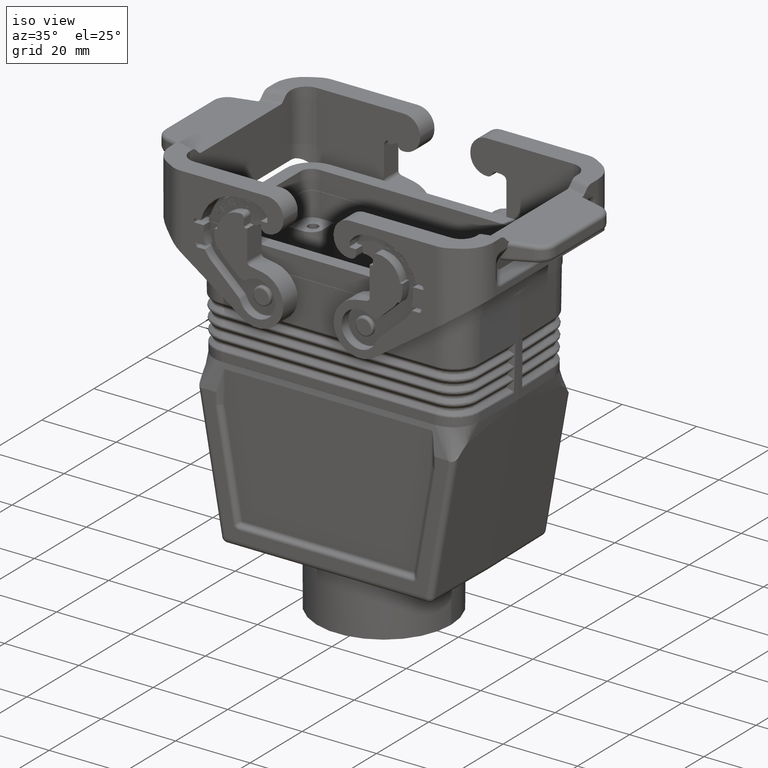
[diagram: clean part render]
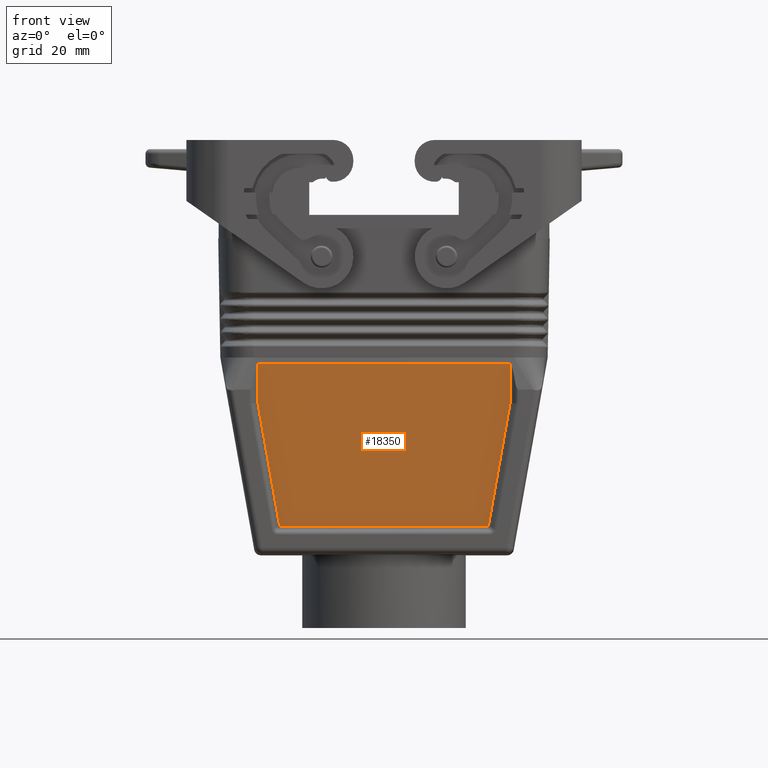
[diagram: tour spotlight — one face highlighted and labeled with its STEP entity id]
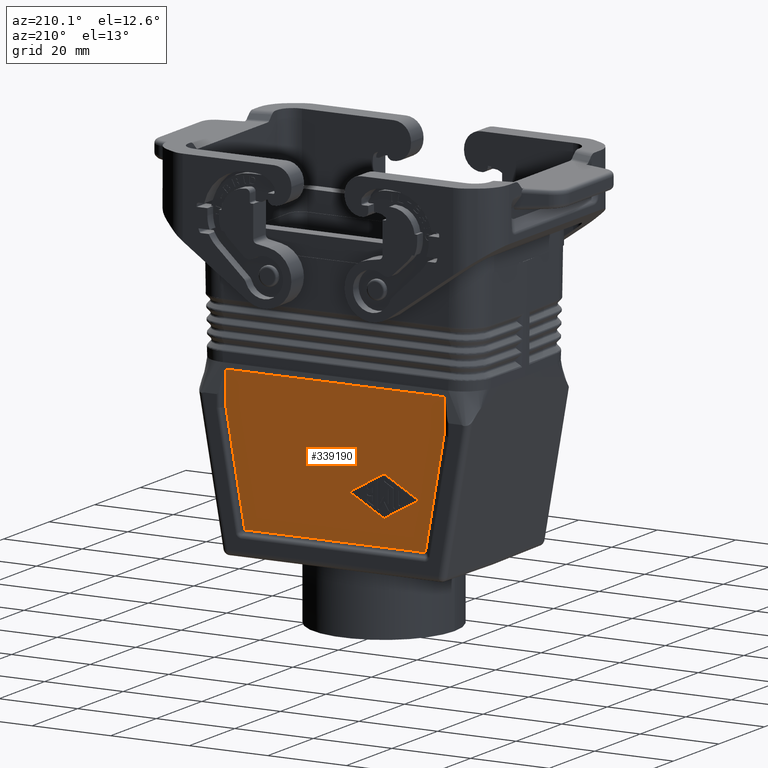
[diagram: tour spotlight — one face highlighted and labeled with its STEP entity id]
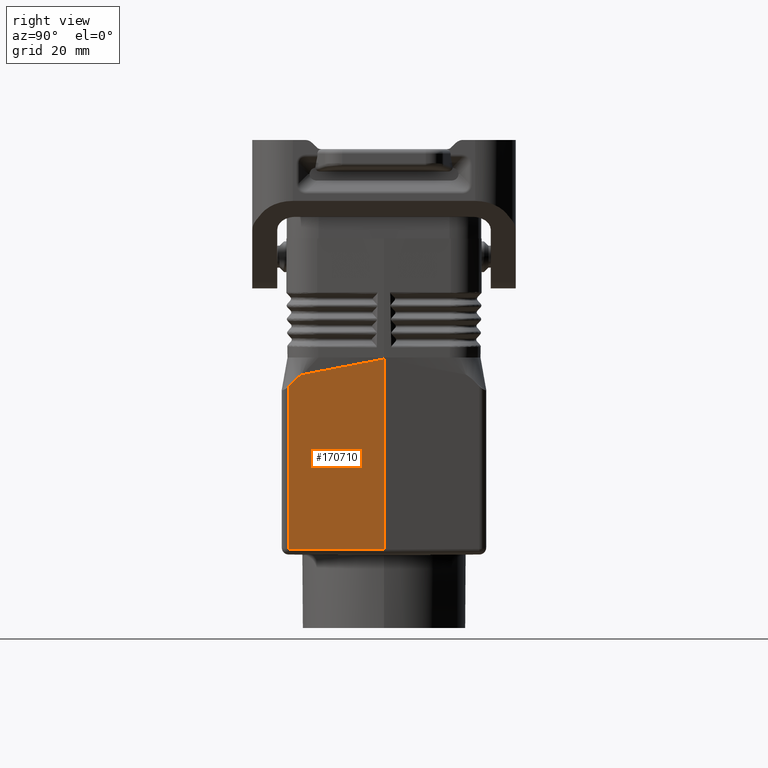
[diagram: tour spotlight — one face highlighted and labeled with its STEP entity id]
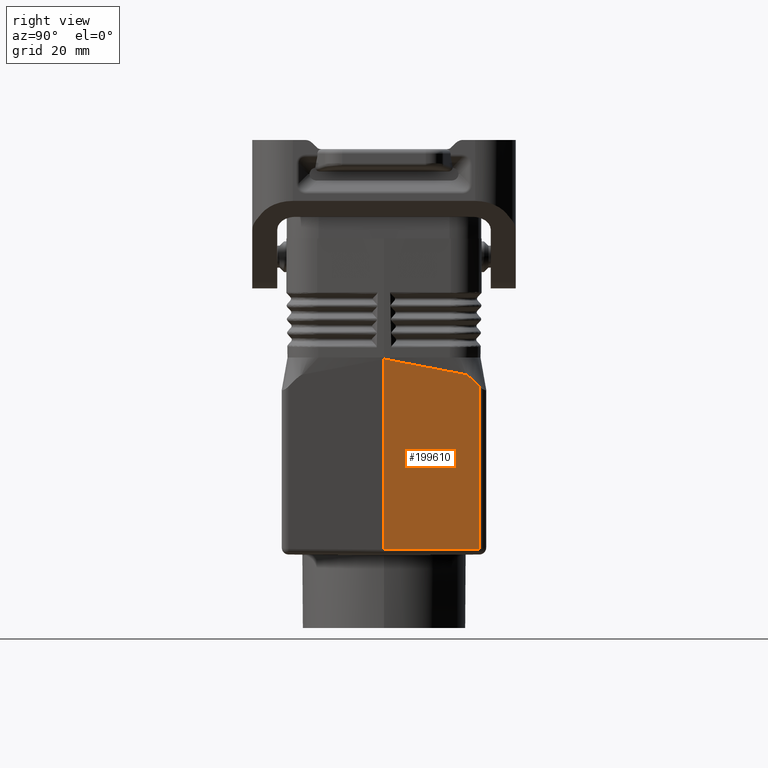
[diagram: tour spotlight — one face highlighted and labeled with its STEP entity id]
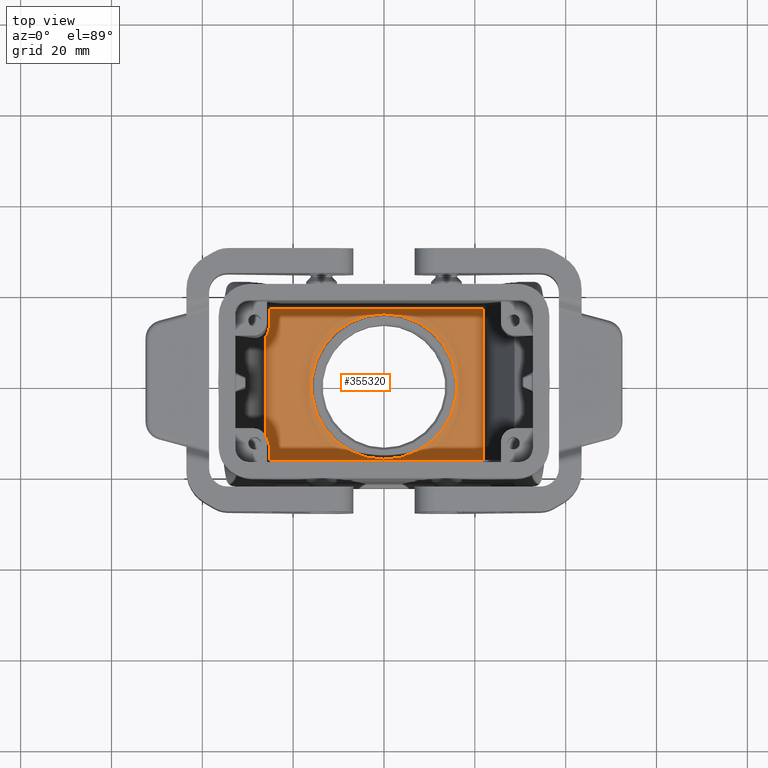
[diagram: tour spotlight — one face highlighted and labeled with its STEP entity id]
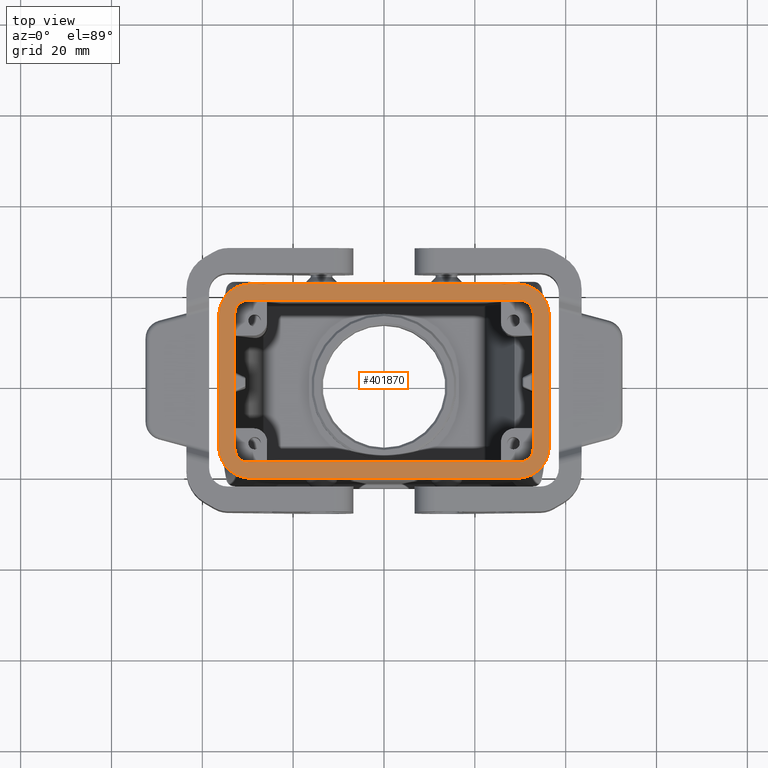
[diagram: tour spotlight — one face highlighted and labeled with its STEP entity id]
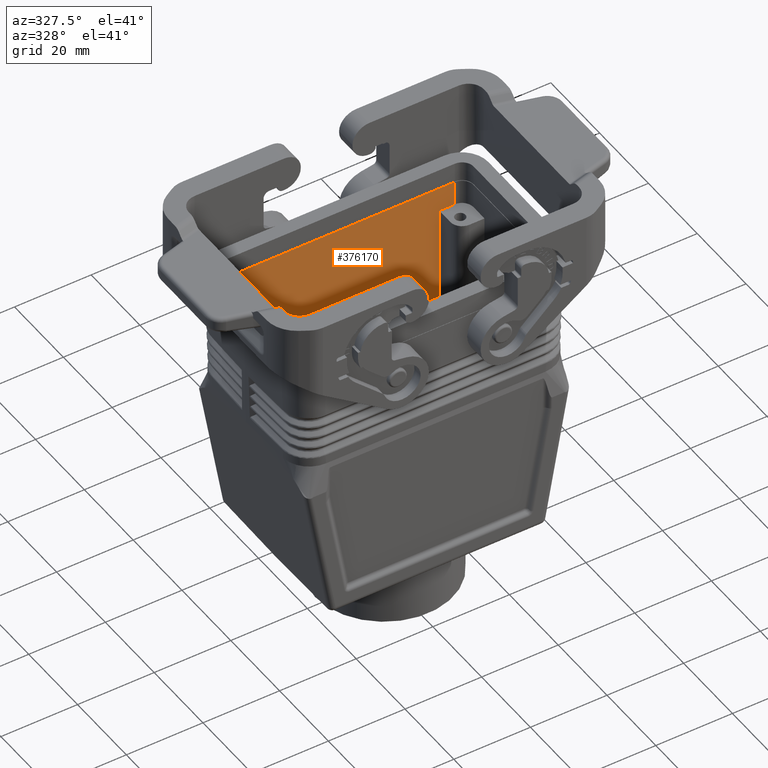
[diagram: tour spotlight — one face highlighted and labeled with its STEP entity id]
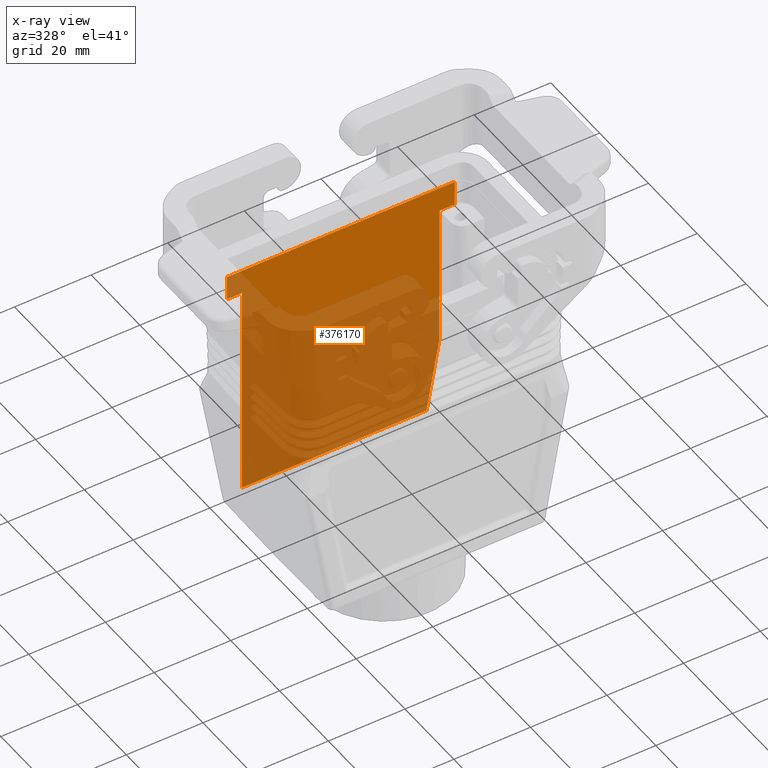
[diagram: x-ray of the same camera — body ghosted, this tour face saturated]
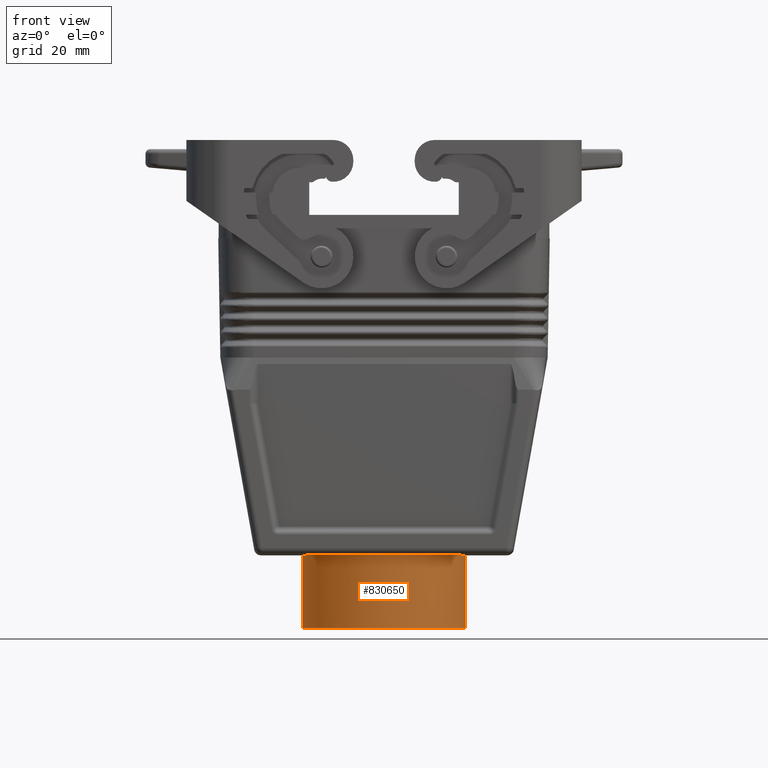
[diagram: tour spotlight — one face highlighted and labeled with its STEP entity id]
A machine part: a face-by-face anatomy tour. The part has 1489 B-rep faces; the first image is the clean iso view, then the 8 largest visible faces are spotlighted one at a time (largest first), each with its STEP entity span.

Face 1 — front view, entity #18350. In plain terms, the highlighted planar face has unit normal (-0, -1, -0).
Definition (entity closure, byte-faithful):
#7730=CARTESIAN_POINT('',(117.120000000043,4.43440734989017,
63.5857864375962));
#7740=VERTEX_POINT('',#7730);
#10400=CARTESIAN_POINT('',(117.120000000043,-0.344967785471074,
27.8711764685854));
#10410=VERTEX_POINT('',#10400);
#10440=CARTESIAN_POINT('',(117.120000000043,25.16326959705,
27.8711764685853));
#10450=DIRECTION('',(0.,-1.,-2.62031346027182E-17));
#10460=VECTOR('',#10450,1.);
#10470=LINE('',#10440,#10460);
#10480=CARTESIAN_POINT('',(117.120000000043,55.164967785471,
27.8711764685854));
#10490=VERTEX_POINT('',#10480);
#10500=EDGE_CURVE('',#10490,#10410,#10470,.T.);
#17910=CARTESIAN_POINT('',(117.120000000043,54.8273245318275,
50.9933021123037));
#17920=DIRECTION('',(1.,0.,0.));
#17930=DIRECTION('',(0.,1.,0.));
#17940=AXIS2_PLACEMENT_3D('',#17910,#17920,#17930);
#17950=PLANE('',#17940);
#17960=CARTESIAN_POINT('',(117.120000000043,-0.737725068089489,
34.2285391921959));
#17970=DIRECTION('',(0.,0.173506897754511,0.984832654023822));
#17980=VECTOR('',#17970,1.);
#17990=LINE('',#17960,#17980);
#18000=CARTESIAN_POINT('',(117.120000000043,-0.344967785471077,
36.4578465110066));
#18010=VERTEX_POINT('',#18000);
#18020=EDGE_CURVE('',#18010,#7740,#17990,.T.);
#18030=ORIENTED_EDGE('',*,*,#18020,.F.);
#18040=CARTESIAN_POINT('',(117.120000000043,25.16326959705,
63.5857864375962));
#18050=DIRECTION('',(0.,1.,0.));
#18060=VECTOR('',#18050,1.);
#18070=LINE('',#18040,#18060);
#18080=CARTESIAN_POINT('',(117.120000000043,50.3866355739972,
63.5857864375962));
#18090=VERTEX_POINT('',#18080);
#18100=EDGE_CURVE('',#7740,#18090,#18070,.T.);
#18110=ORIENTED_EDGE('',*,*,#18100,.F.);
#18120=CARTESIAN_POINT('',(117.120000000043,55.5587679919769,
34.2285391921959));
#18130=DIRECTION('',(0.,-0.173506897754511,0.984832654023822));
#18140=VECTOR('',#18130,1.);
#18150=LINE('',#18120,#18140);
#18160=CARTESIAN_POINT('',(117.120000000043,55.164967785471,
36.4637661920873));
#18170=VERTEX_POINT('',#18160);
#18180=EDGE_CURVE('',#18170,#18090,#18150,.T.);
#18190=ORIENTED_EDGE('',*,*,#18180,.T.);
#18200=CARTESIAN_POINT('',(117.120000000043,55.164967785471,
34.2285391921959));
#18210=DIRECTION('',(0.,0.,-1.));
#18220=VECTOR('',#18210,1.);
#18230=LINE('',#18200,#18220);
#18240=EDGE_CURVE('',#18170,#10490,#18230,.T.);
#18250=ORIENTED_EDGE('',*,*,#18240,.F.);
#18260=ORIENTED_EDGE('',*,*,#10500,.F.);
#18270=CARTESIAN_POINT('',(117.120000000043,-0.344967785471077,
34.2285391921959));
#18280=DIRECTION('',(0.,5.33011912970449E-16,-1.));
#18290=VECTOR('',#18280,1.);
#18300=LINE('',#18270,#18290);
#18310=EDGE_CURVE('',#18010,#10410,#18300,.T.);
#18320=ORIENTED_EDGE('',*,*,#18310,.T.);
#18330=EDGE_LOOP('',(#18320,#18260,#18250,#18190,#18110,#18030));
#18340=FACE_OUTER_BOUND('',#18330,.T.);
#18350=ADVANCED_FACE('',(#18340),#17950,.T.);

Face 2 — auxiliary view, entity #339190. In plain terms, the highlighted planar face has unit normal (-0, -1, -0).
Definition (entity closure, byte-faithful):
#13370=CARTESIAN_POINT('',(74.1199999999574,55.164967785471,
36.4637661920869));
#13380=VERTEX_POINT('',#13370);
#13560=CARTESIAN_POINT('',(74.1199999999574,50.3866355739971,
63.5857864375962));
#13570=VERTEX_POINT('',#13560);
#13600=CARTESIAN_POINT('',(74.1199999999574,55.5587679919768,
34.2285391921959));
#13610=DIRECTION('',(0.,-0.173506897754511,0.984832654023822));
#13620=VECTOR('',#13610,1.);
#13630=LINE('',#13600,#13620);
#13640=EDGE_CURVE('',#13380,#13570,#13630,.T.);
#20260=CARTESIAN_POINT('',(74.1199999999574,40.0711015727846,
47.0444349235293));
#20270=VERTEX_POINT('',#20260);
#20450=CARTESIAN_POINT('',(74.1199999999574,39.7403013134007,
47.0444365145513));
#20460=VERTEX_POINT('',#20450);
#20490=CARTESIAN_POINT('',(74.1199999999574,39.9057028348234,47.3338));
#20500=DIRECTION('',(-1.,0.,0.));
#20510=DIRECTION('',(0.,-1.,0.));
#20520=AXIS2_PLACEMENT_3D('',#20490,#20500,#20510);
#20530=CIRCLE('',#20520,0.333300000000038);
#20540=EDGE_CURVE('',#20270,#20460,#20530,.T.);
#115270=CARTESIAN_POINT('',(74.1199999999574,39.7403013134007,
56.9555634854487));
#115280=VERTEX_POINT('',#115270);
#115460=CARTESIAN_POINT('',(74.1199999999574,40.0711015727845,
56.9555650764706));
#115470=VERTEX_POINT('',#115460);
#115500=CARTESIAN_POINT('',(74.1199999999574,39.9057028348234,56.6662));
#115510=DIRECTION('',(-1.,0.,0.));
#115520=DIRECTION('',(0.,-1.,0.));
#115530=AXIS2_PLACEMENT_3D('',#115500,#115510,#115520);
#115540=CIRCLE('',#115530,0.333299999999976);
#115550=EDGE_CURVE('',#115280,#115470,#115540,.T.);
#182010=CARTESIAN_POINT('',(74.1199999999574,31.3238520741121,
51.8553182572757));
#182020=VERTEX_POINT('',#182010);
#182050=CARTESIAN_POINT('',(74.1199999999574,24.96326959705,
55.4910569449337));
#182060=DIRECTION('',(0.,-0.868177274073496,0.496254189687417));
#182070=VECTOR('',#182060,1.);
#182080=LINE('',#182050,#182070);
#182090=EDGE_CURVE('',#20460,#182020,#182080,.T.);
#182300=CARTESIAN_POINT('',(74.1199999999574,31.3238520741121,
52.1446817427243));
#182310=VERTEX_POINT('',#182300);
#182430=CARTESIAN_POINT('',(74.1199999999574,24.96326959705,
48.5089430550664));
#182440=DIRECTION('',(0.,0.868177274073497,0.496254189687414));
#182450=VECTOR('',#182440,1.);
#182460=LINE('',#182430,#182450);
#182470=EDGE_CURVE('',#182310,#115280,#182460,.T.);
#272320=CARTESIAN_POINT('',(74.1199999999574,48.4874589512213,
52.1448432519809));
#272330=VERTEX_POINT('',#272320);
#272360=CARTESIAN_POINT('',(74.1199999999574,24.96326959705,
65.5910796748172));
#272370=DIRECTION('',(0.,0.868182047616831,-0.496245838467031));
#272380=VECTOR('',#272370,1.);
#272390=LINE('',#272360,#272380);
#272400=EDGE_CURVE('',#115470,#272330,#272390,.T.);
#337130=CARTESIAN_POINT('',(74.1199999999574,48.4874589512214,
51.8551567480191));
#337140=VERTEX_POINT('',#337130);
#337170=CARTESIAN_POINT('',(74.1199999999574,48.4046677195633,52.));
#337180=DIRECTION('',(-1.,0.,0.));
#337190=DIRECTION('',(0.,-1.,0.));
#337200=AXIS2_PLACEMENT_3D('',#337170,#337180,#337190);
#337210=CIRCLE('',#337200,0.166835115260118);
#337220=EDGE_CURVE('',#272330,#337140,#337210,.T.);
#338520=CARTESIAN_POINT('',(74.1199999999574,54.8273245318275,
50.9933021123037));
#338530=DIRECTION('',(1.,0.,0.));
#338540=DIRECTION('',(0.,1.,0.));
#338550=AXIS2_PLACEMENT_3D('',#338520,#338530,#338540);
#338560=PLANE('',#338550);
#338570=CARTESIAN_POINT('',(74.1199999999574,31.4065528348234,52.));
#338580=DIRECTION('',(-1.,0.,0.));
#338590=DIRECTION('',(0.,-1.,0.));
#338600=AXIS2_PLACEMENT_3D('',#338570,#338580,#338590);
#338610=CIRCLE('',#338600,0.166649999999925);
#338620=EDGE_CURVE('',#182020,#182310,#338610,.T.);
#338630=ORIENTED_EDGE('',*,*,#338620,.F.);
#338640=ORIENTED_EDGE('',*,*,#182470,.F.);
#338650=ORIENTED_EDGE('',*,*,#115550,.F.);
#338660=ORIENTED_EDGE('',*,*,#272400,.F.);
#338670=ORIENTED_EDGE('',*,*,#337220,.F.);
#338680=CARTESIAN_POINT('',(74.1199999999574,24.96326959705,
38.4089203251829));
#338690=DIRECTION('',(0.,-0.868182047616831,-0.496245838467031));
#338700=VECTOR('',#338690,1.);
#338710=LINE('',#338680,#338700);
#338720=EDGE_CURVE('',#337140,#20270,#338710,.T.);
#338730=ORIENTED_EDGE('',*,*,#338720,.F.);
#338740=ORIENTED_EDGE('',*,*,#20540,.F.);
#338750=ORIENTED_EDGE('',*,*,#182090,.F.);
#338760=EDGE_LOOP('',(#338750,#338740,#338730,#338670,#338660,#338650,
#338640,#338630));
#338770=FACE_BOUND('',#338760,.T.);
#338780=CARTESIAN_POINT('',(74.1199999999574,25.16326959705,
27.8711764685853));
#338790=DIRECTION('',(0.,1.,2.62031346027182E-17));
#338800=VECTOR('',#338790,1.);
#338810=LINE('',#338780,#338800);
#338820=CARTESIAN_POINT('',(74.1199999999574,-0.344967785471066,
27.8711764685853));
#338830=VERTEX_POINT('',#338820);
#338840=CARTESIAN_POINT('',(74.1199999999574,55.164967785471,
27.8711764685853));
#338850=VERTEX_POINT('',#338840);
#338860=EDGE_CURVE('',#338830,#338850,#338810,.T.);
#338870=ORIENTED_EDGE('',*,*,#338860,.F.);
#338880=CARTESIAN_POINT('',(74.1199999999574,55.164967785471,
34.2285391921959));
#338890=DIRECTION('',(0.,0.,1.));
#338900=VECTOR('',#338890,1.);
#338910=LINE('',#338880,#338900);
#338920=EDGE_CURVE('',#338850,#13380,#338910,.T.);
#338930=ORIENTED_EDGE('',*,*,#338920,.F.);
#338940=ORIENTED_EDGE('',*,*,#13640,.F.);
#338950=CARTESIAN_POINT('',(74.1199999999574,25.16326959705,
63.5857864375962));
#338960=DIRECTION('',(0.,1.,0.));
#338970=VECTOR('',#338960,1.);
#338980=LINE('',#338950,#338970);
#338990=CARTESIAN_POINT('',(74.1199999999574,4.43440734989023,
63.5857864375962));
#339000=VERTEX_POINT('',#338990);
#339010=EDGE_CURVE('',#339000,#13570,#338980,.T.);
#339020=ORIENTED_EDGE('',*,*,#339010,.T.);
#339030=CARTESIAN_POINT('',(74.1199999999574,-0.737725068089429,
34.2285391921959));
#339040=DIRECTION('',(0.,0.173506897754511,0.984832654023822));
#339050=VECTOR('',#339040,1.);
#339060=LINE('',#339030,#339050);
#339070=CARTESIAN_POINT('',(74.1199999999574,-0.344967785471074,
36.4578465110063));
#339080=VERTEX_POINT('',#339070);
#339090=EDGE_CURVE('',#339080,#339000,#339060,.T.);
#339100=ORIENTED_EDGE('',*,*,#339090,.T.);
#339110=CARTESIAN_POINT('',(74.1199999999574,-0.34496778547107,
34.2285391921959));
#339120=DIRECTION('',(0.,-5.33011912970449E-16,1.));
#339130=VECTOR('',#339120,1.);
#339140=LINE('',#339110,#339130);
#339150=EDGE_CURVE('',#338830,#339080,#339140,.T.);
#339160=ORIENTED_EDGE('',*,*,#339150,.T.);
#339170=EDGE_LOOP('',(#339160,#339100,#339020,#338940,#338930,#338870));
#339180=FACE_OUTER_BOUND('',#339170,.T.);
#339190=ADVANCED_FACE('',(#338770,#339180),#338560,.F.);

Face 3 — right view, entity #170710. In plain terms, the highlighted planar face has unit normal (0.9848, -0.0087, -0.1737).
Definition (entity closure, byte-faithful):
#3520=CARTESIAN_POINT('',(116.867766405432,-1.25369332327057,
26.4503933502534));
#3530=CARTESIAN_POINT('',(116.867766405432,-2.15748339873318,
26.4503933502534));
#3540=CARTESIAN_POINT('',(116.692767533118,-3.05267802881065,
26.4503933616133));
#3550=CARTESIAN_POINT('',(116.238989326148,-4.16889562860017,
26.4503933907643));
#3560=CARTESIAN_POINT('',(116.107889170004,-4.43974349232645,
26.4503933992191));
#3570=CARTESIAN_POINT('',(115.664685174067,-5.22298386241636,
26.4503934279893));
#3580=CARTESIAN_POINT('',(115.302677805598,-5.70607314980512,
26.4503934513732));
#3590=CARTESIAN_POINT('',(114.461924513651,-6.56913053800694,
26.4503935051613));
#3600=CARTESIAN_POINT('',(113.988477013475,-6.94365965516091,
26.4503935355656));
#3610=CARTESIAN_POINT('',(113.21710676332,-7.40721461319576,
26.4503935853971));
#3620=CARTESIAN_POINT('',(112.949783512782,-7.54535981324703,
26.4503936025656));
#3630=CARTESIAN_POINT('',(111.845826935375,-8.02820168476844,
26.4503936729983));
#3640=CARTESIAN_POINT('',(110.955519998634,-8.22657404753696,
26.4503937297794));
#3650=CARTESIAN_POINT('',(110.052039626452,-8.25023250876846,
26.4503937873198));
#3660=CARTESIAN_POINT('',(118.458948705005,-6.46272143320627,
35.4132158993642));
#3670=CARTESIAN_POINT('',(118.458948705005,-6.55782515166361,
35.4132158993642));
#3680=CARTESIAN_POINT('',(118.440263291828,-6.65413793838238,
35.3941338360077));
#3690=CARTESIAN_POINT('',(118.393589619737,-6.77649965085401,
35.3451670965132));
#3700=CARTESIAN_POINT('',(118.37991437297,-6.80706147705442,
35.3309650792768));
#3710=CARTESIAN_POINT('',(118.332592479835,-6.89780314691682,
35.2826379273787));
#3720=CARTESIAN_POINT('',(118.294611985075,-6.95348791112306,
35.2433585804779));
#3730=CARTESIAN_POINT('',(118.209428556507,-7.05339903552314,
35.1530072431515));
#3740=CARTESIAN_POINT('',(118.160791470378,-7.09909759425523,
35.1019352527258));
#3750=CARTESIAN_POINT('',(118.079834029193,-7.15825792256459,
35.0182301702532));
#3760=CARTESIAN_POINT('',(118.052364282882,-7.17587200008342,
34.9893910963062));
#3770=CARTESIAN_POINT('',(117.941642968249,-7.23816387008688,
34.8710809391622));
#3780=CARTESIAN_POINT('',(117.852469714337,-7.26836594770261,
34.7757021332535));
#3790=CARTESIAN_POINT('',(117.762446999742,-7.27901078753535,
34.6790478294572));
#3800=B_SPLINE_SURFACE_WITH_KNOTS('',3,1,((#3520,#3660),(#3530,#3670),(
#3540,#3680),(#3550,#3690),(#3560,#3700),(#3570,#3710),(#3580,#3720),(
#3590,#3730),(#3600,#3740),(#3610,#3750),(#3620,#3760),(#3630,#3770),(
#3640,#3780),(#3650,#3790)),.UNSPECIFIED.,.F.,.F.,.F.,(4,2,2,2,2,2,4),(2
,2),(0.,2.71136878210222,3.61515837613629,5.42273756420443,
7.23031675227258,8.13410634630665,10.8454751284089),(0.999995358485235,
8.79664513599175),.UNSPECIFIED.);
#165560=CARTESIAN_POINT('',(110.052044216625,-8.2502319305791,
26.4503986860161));
#165570=CARTESIAN_POINT('',(105.241362811083,-8.37620405655895,
26.4503986860161));
#165580=CARTESIAN_POINT('',(100.430681405542,-8.50217618253881,
26.4503986860161));
#165590=CARTESIAN_POINT('',(95.6199999999999,-8.62814830851868,
26.4503986860161));
#165600=CARTESIAN_POINT('',(348.514567562472,21.7870892070623,
280.940921900853));
#165610=CARTESIAN_POINT('',(264.216378374981,12.9277873474063,
203.362458613125));
#165620=CARTESIAN_POINT('',(179.918189187488,4.0684854877497,
125.783995325396));
#165630=CARTESIAN_POINT('',(95.6200000000022,-4.7908163719066,
48.2055320376664));
#165640=B_SPLINE_SURFACE_WITH_KNOTS('',3,1,((#165560,#165600),(#165570,
#165610),(#165580,#165620),(#165590,#165630)),.UNSPECIFIED.,.F.,.F.,.F.,
(4,4),(2,2),(10.8454751284089,25.2824665414193),(1.,242.129772990806),
.UNSPECIFIED.);
#165780=CARTESIAN_POINT('',(95.62,-8.57159395657393,26.7710244459185));
#165790=VERTEX_POINT('',#165780);
#165820=CARTESIAN_POINT('',(95.62,-7.25618213899737,34.2285391921958));
#165830=DIRECTION('',(0.00872653549837363,-0.984760073927079,
0.17369929296727));
#165840=DIRECTION('',(5.34062786974031E-17,0.173705907155949,
0.984797572001032));
#165850=AXIS2_PLACEMENT_3D('',#165820,#165830,#165840);
#165860=PLANE('',#165850);
#165870=CARTESIAN_POINT('',(113.566489590054,-7.80754381832897,
30.2010636934339));
#165880=CARTESIAN_POINT('',(112.07094879084,-7.87121466318452,
29.9152270894663));
#165890=CARTESIAN_POINT('',(110.575407991736,-7.93488550803537,
29.6293904855198));
#165900=CARTESIAN_POINT('',(109.07986719254,-7.99855635289016,
29.3435538815555));
#165910=CARTESIAN_POINT('',(107.584326393369,-8.06222719774389,
29.057717277596));
#165920=CARTESIAN_POINT('',(106.088785594198,-8.12589804259762,
28.7718806736366));
#165930=CARTESIAN_POINT('',(104.593244795027,-8.18956888745135,
28.4860440696771));
#165940=CARTESIAN_POINT('',(103.097703995856,-8.25323973230508,
28.2002074657176));
#165950=CARTESIAN_POINT('',(101.602163196684,-8.31691057715882,
27.9143708617581));
#165960=CARTESIAN_POINT('',(100.106622397513,-8.38058142201252,
27.6285342577988));
#165970=CARTESIAN_POINT('',(98.6110815983629,-8.44425226686534,
27.3426976538434));
#165980=CARTESIAN_POINT('',(97.1155407991349,-8.50792311172182,
27.0568610498711));
#165990=CARTESIAN_POINT('',(95.62,-8.57159395657398,26.7710244459185));
#166000=B_SPLINE_CURVE_WITH_KNOTS('',3,(#165870,#165880,#165890,#165900,
#165910,#165920,#165930,#165940,#165950,#165960,#165970,#165980,#165990)
,.UNSPECIFIED.,.F.,.F.,(4,3,3,3,4),(0.,4.57182560950192,9.14365121900383
,13.7154768285057,18.2873024380077),.UNSPECIFIED.);
#166010=SURFACE_CURVE('',#166000,(#165860,#165640),.CURVE_3D.);
#166020=CARTESIAN_POINT('',(113.566489590054,-7.80754381832899,
30.2010636934338));
#166030=VERTEX_POINT('',#166020);
#166040=EDGE_CURVE('',#166030,#165790,#166010,.T.);
#169460=CARTESIAN_POINT('',(95.62,-7.25618213899736,34.2285391921959));
#169470=DIRECTION('',(0.,-0.173705907155949,-0.984797572001032));
#169480=VECTOR('',#169470,1.);
#169490=LINE('',#169460,#169480);
#169500=CARTESIAN_POINT('',(95.6199999999999,-1.16515981025636,
68.7606060548557));
#169510=VERTEX_POINT('',#169500);
#169520=EDGE_CURVE('',#169510,#165790,#169490,.T.);
#169530=ORIENTED_EDGE('',*,*,#169520,.T.);
#169540=CARTESIAN_POINT('',(87.646418580935,-1.22354457151,
68.8301904457177));
#169550=DIRECTION('',(-0.99993511934356,-0.00732180059919349,
0.00872630158584786));
#169560=VECTOR('',#169550,1.);
#169570=LINE('',#169540,#169560);
#169580=CARTESIAN_POINT('',(116.63308980329,-1.01129617397017,
68.577227598266));
#169590=VERTEX_POINT('',#169580);
#169600=EDGE_CURVE('',#169590,#169510,#169570,.T.);
#169610=ORIENTED_EDGE('',*,*,#169600,.T.);
#169620=CARTESIAN_POINT('',(116.63308980329,-7.02401529275919,
34.4890881316468));
#169630=DIRECTION('',(0.,0.173705907155949,0.984797572001032));
#169640=VECTOR('',#169630,1.);
#169650=LINE('',#169620,#169640);
#169660=CARTESIAN_POINT('',(116.633089802698,-7.32489063743424,
32.7833239825789));
#169670=VERTEX_POINT('',#169660);
#169680=EDGE_CURVE('',#169670,#169590,#169650,.T.);
#169690=ORIENTED_EDGE('',*,*,#169680,.T.);
#169700=CARTESIAN_POINT('',(113.566489590054,-7.80754381832898,
30.2010636934339));
#169710=CARTESIAN_POINT('',(113.576860424265,-7.80708203632,
30.2031606681894));
#169720=CARTESIAN_POINT('',(113.587157796526,-7.8065586957627,
30.2056103298286));
#169730=CARTESIAN_POINT('',(113.597386200186,-7.8059888206126,
30.2083272767962));
#169740=CARTESIAN_POINT('',(113.60761496954,-7.80541892508793,
30.2110443209019));
#169750=CARTESIAN_POINT('',(113.61777686487,-7.80480219623515,
30.2140302386582));
#169760=CARTESIAN_POINT('',(113.627874567269,-7.80414885157308,
30.2172269688797));
#169770=CARTESIAN_POINT('',(113.637972332345,-7.80349550285571,
30.2204237189433));
#169780=CARTESIAN_POINT('',(113.648006719709,-7.80280538425914,
30.2238321140086));
#169790=CARTESIAN_POINT('',(113.65797531254,-7.8020861782542,
30.2274087208489));
#169800=CARTESIAN_POINT('',(113.667943876572,-7.80136697432712,
30.230985317356));
#169810=CARTESIAN_POINT('',(113.677846919789,-7.80061860594519,
30.2347305487687));
#169820=CARTESIAN_POINT('',(113.687677122191,-7.79984737865091,
30.2386090345449));
#169830=CARTESIAN_POINT('',(113.697505068041,-7.7990763283941,
30.2424866300034));
#169840=CARTESIAN_POINT('',(113.707270908418,-7.79828158924314,
30.2465016459198));
#169850=CARTESIAN_POINT('',(113.716985087778,-7.79746659523158,
30.2506340889469));
#169860=CARTESIAN_POINT('',(113.726698996748,-7.79665162390509,
30.254766416949));
#169870=CARTESIAN_POINT('',(113.736359964704,-7.79581647697953,
30.2590157870077));
#169880=CARTESIAN_POINT('',(113.745973659552,-7.79496399370675,
30.2633658176178));
#169890=CARTESIAN_POINT('',(113.765200986106,-7.79325903276024,
30.2720658502673));
#169900=CARTESIAN_POINT('',(113.784240834342,-7.79148504800743,
30.2811666210178));
#169910=CARTESIAN_POINT('',(113.803128769747,-7.78965787263085,
30.2905765794131));
#169920=CARTESIAN_POINT('',(113.822017005288,-7.78783066821974,
30.2999866873363));
#169930=CARTESIAN_POINT('',(113.840754446988,-7.7859499281001,
30.3097078830895));
#169940=CARTESIAN_POINT('',(113.859366881418,-7.78402603574133,
30.3196800037705));
#169950=CARTESIAN_POINT('',(113.877979384416,-7.78210213629489,
30.3296521611892));
#169960=CARTESIAN_POINT('',(113.89646733562,-7.78013491093794,
30.3398762052548));
#169970=CARTESIAN_POINT('',(113.91484784469,-7.77813182504365,
30.3503089526627));
#169980=CARTESIAN_POINT('',(113.933228330324,-7.77612874170342,
30.3607416867682));
#169990=CARTESIAN_POINT('',(113.951501548053,-7.77408970629401,
30.3713836343879));
#170000=CARTESIAN_POINT('',(113.969677363466,-7.77202057656041,
30.3822010903425));
#170010=CARTESIAN_POINT('',(113.987853127075,-7.76995145272413,
30.3930185154658));
#170020=CARTESIAN_POINT('',(114.005931533477,-7.7678521857294,
30.4040117235156));
#170030=CARTESIAN_POINT('',(114.023916706596,-7.76572771880241,
30.4151524824868));
#170040=CARTESIAN_POINT('',(114.041901831075,-7.7636032576209,
30.4262932113285));
#170050=CARTESIAN_POINT('',(114.059793704907,-7.76145357132862,
30.4375816346505));
#170060=CARTESIAN_POINT('',(114.077592185453,-7.75928304545979,
30.4489928966591));
#170070=CARTESIAN_POINT('',(114.09539063708,-7.7571125231176,
30.4604041401268));
#170080=CARTESIAN_POINT('',(114.113095646351,-7.75492114985931,
30.4719382890324));
#170090=CARTESIAN_POINT('',(114.130704223496,-7.7527129156196,
30.4835728731754));
#170100=CARTESIAN_POINT('',(114.148315970428,-7.75050428386736,
30.4952095517036));
#170110=CARTESIAN_POINT('',(114.165817422992,-7.74828055018352,
30.506937389309));
#170120=CARTESIAN_POINT('',(114.183244161948,-7.746040207604,
30.5187631419244));
#170130=CARTESIAN_POINT('',(114.20067298204,-7.7437995974783,
30.5305903067948));
#170140=CARTESIAN_POINT('',(114.218030746213,-7.74154186097999,
30.5425181366687));
#170150=CARTESIAN_POINT('',(114.235323058655,-7.7392686281877,
30.5545371085284));
#170160=CARTESIAN_POINT('',(114.269907686348,-7.73472216223374,
30.5785750542007));
#170170=CARTESIAN_POINT('',(114.304231333085,-7.73011388590107,
30.6029765353346));
#170180=CARTESIAN_POINT('',(114.338329498204,-7.72545373408417,
30.6276834441888));
#170190=CARTESIAN_POINT('',(114.372427770427,-7.72079356762944,
30.652390430649));
#170200=CARTESIAN_POINT('',(114.4063006849,-7.71608139396188,
30.6774035854205));
#170210=CARTESIAN_POINT('',(114.43997507336,-7.71132433985712,
30.7026811563915));
#170220=CARTESIAN_POINT('',(114.473649513755,-7.70656727841583,
30.7279587663466));
#170230=CARTESIAN_POINT('',(114.507125489498,-7.70176525905314,
30.753501228703));
#170240=CARTESIAN_POINT('',(114.540423495598,-7.69692362300911,
30.7792772325076));
#170250=CARTESIAN_POINT('',(114.573721522482,-7.6920819839431,
30.8050532524008));
#170260=CARTESIAN_POINT('',(114.606841609954,-7.68720068021185,
30.8310630842603));
#170270=CARTESIAN_POINT('',(114.639799400505,-7.68228388319013,
30.857282293283));
#170280=CARTESIAN_POINT('',(114.67275719402,-7.67736708572604,
30.8835015046647));
#170290=CARTESIAN_POINT('',(114.70555270409,-7.67241476410531,
30.9099302675233));
#170300=CARTESIAN_POINT('',(114.738197734367,-7.66743030664782,
30.9365487793191));
#170310=CARTESIAN_POINT('',(114.770842757708,-7.66244585024922,
30.9631672854601));
#170320=CARTESIAN_POINT('',(114.803337305187,-7.65742923761098,
30.9899756560118));
#170330=CARTESIAN_POINT('',(114.835690077742,-7.65238332427049,
31.0169572648368));
#170340=CARTESIAN_POINT('',(114.900395385083,-7.64229153467353,
31.0709202841905));
#170350=CARTESIAN_POINT('',(114.964536097919,-7.63208269005307,
31.125575292933));
#170360=CARTESIAN_POINT('',(115.028152472716,-7.62177570266021,
31.180813048655));
#170370=CARTESIAN_POINT('',(115.091768680255,-7.61146874236601,
31.2360506591485));
#170380=CARTESIAN_POINT('',(115.154860331807,-7.60106343152003,
31.2918722055428));
#170390=CARTESIAN_POINT('',(115.217440345017,-7.5905755722996,
31.3481874509728));
#170400=CARTESIAN_POINT('',(115.280020923325,-7.58008761837363,
31.4045032049305));
#170410=CARTESIAN_POINT('',(115.342086666795,-7.56951752442393,
31.4613105034355));
#170420=CARTESIAN_POINT('',(115.403640990007,-7.55887779165013,
31.5185383014103));
#170430=CARTESIAN_POINT('',(115.465204349087,-7.54823649701654,
31.575774500141));
#170440=CARTESIAN_POINT('',(115.526323294778,-7.53751388419192,
31.6334940462447));
#170450=CARTESIAN_POINT('',(115.58701212067,-7.52671588225662,
31.6916626076589));
#170460=CARTESIAN_POINT('',(115.647700987898,-7.51591787296652,
31.7498312086933));
#170470=CARTESIAN_POINT('',(115.707959789551,-7.50504441598475,
31.8084491544163));
#170480=CARTESIAN_POINT('',(115.767795374101,-7.49409983453838,
31.8674915909536));
#170490=CARTESIAN_POINT('',(115.827630979625,-7.48315524925538,
31.9265340481883));
#170500=CARTESIAN_POINT('',(115.887043428155,-7.4721394979535,
31.9860012287344));
#170510=CARTESIAN_POINT('',(115.946033214525,-7.46105568810999,
32.0458754905027));
#170520=CARTESIAN_POINT('',(116.005023006573,-7.44997187719977,
32.1057497580332));
#170530=CARTESIAN_POINT('',(116.063590204227,-7.4388199766527,
32.1660312796838));
#170540=CARTESIAN_POINT('',(116.121729524576,-7.42760213367293,
32.2267081475003));
#170550=CARTESIAN_POINT('',(116.179868838397,-7.41638429195261,
32.2873850085044));
#170560=CARTESIAN_POINT('',(116.237580352807,-7.405100483225,
32.3484573510303));
#170570=CARTESIAN_POINT('',(116.294853215998,-7.39375206193038,
32.4099180417271));
#170580=CARTESIAN_POINT('',(116.35212606221,-7.38240364400011,
32.4713787142033));
#170590=CARTESIAN_POINT('',(116.408960348533,-7.37099059290138,
32.5332278470323));
#170600=CARTESIAN_POINT('',(116.465339572004,-7.35951357678799,
32.5954624811326));
#170610=CARTESIAN_POINT('',(116.521718768973,-7.34803656606939,
32.6576970859794));
#170620=CARTESIAN_POINT('',(116.577643012241,-7.33649557189009,
32.7203172913117));
#170630=CARTESIAN_POINT('',(116.633089802988,-7.32489063737366,
32.7833239829201));
#170640=B_SPLINE_CURVE_WITH_KNOTS('',3,(#169700,#169710,#169720,#169730,
#169740,#169750,#169760,#169770,#169780,#169790,#169800,#169810,#169820,
#169830,#169840,#169850,#169860,#169870,#169880,#169890,#169900,#169910,
#169920,#169930,#169940,#169950,#169960,#169970,#169980,#169990,#170000,
#170010,#170020,#170030,#170040,#170050,#170060,#170070,#170080,#170090,
#170100,#170110,#170120,#170130,#170140,#170150,#170160,#170170,#170180,
#170190,#170200,#170210,#170220,#170230,#170240,#170250,#170260,#170270,
#170280,#170290,#170300,#170310,#170320,#170330,#170340,#170350,#170360,
#170370,#170380,#170390,#170400,#170410,#170420,#170430,#170440,#170450,
#170460,#170470,#170480,#170490,#170500,#170510,#170520,#170530,#170540,
#170550,#170560,#170570,#170580,#170590,#170600,#170610,#170620,#170630)
,.UNSPECIFIED.,.F.,.F.,(4,3,3,3,3,3,3,3,3,3,3,3,3,3,3,3,3,3,3,3,3,3,3,3,
3,3,3,3,3,3,3,4),(0.,0.0317819195062277,0.063598913750905,
0.0954438753744296,0.127267471153641,0.159036744774176,0.190797433595389
,0.2543250860071,0.317899866405097,0.381549023267792,0.445274036083936,
0.509050274062086,0.572829949833993,0.636547252589223,0.70013480541485,
0.763679158608043,0.89077002025241,1.01787826344095,1.14501804036811,
1.27219869996776,1.39942382669356,1.52669070727503,1.7813070078449,
2.03590323161596,2.29025783035047,2.5444873113251,2.7987772194187,
3.05310482110707,3.30744676143301,3.56177832032234,3.81607277728682,
4.0703009084198),.UNSPECIFIED.);
#170650=SURFACE_CURVE('',#170640,(#3800,#165860),.CURVE_3D.);
#170660=EDGE_CURVE('',#166030,#169670,#170650,.T.);
#170670=ORIENTED_EDGE('',*,*,#170660,.T.);
#170680=ORIENTED_EDGE('',*,*,#166040,.F.);
#170690=EDGE_LOOP('',(#170680,#170670,#169690,#169610,#169530));
#170700=FACE_OUTER_BOUND('',#170690,.T.);
#170710=ADVANCED_FACE('',(#170700),#165860,.T.);

Face 4 — right view, entity #199610. In plain terms, the highlighted planar face has unit normal (-0.9848, -0.0087, 0.1737).
Definition (entity closure, byte-faithful):
#165780=CARTESIAN_POINT('',(95.62,-8.57159395657393,26.7710244459185));
#165790=VERTEX_POINT('',#165780);
#169460=CARTESIAN_POINT('',(95.62,-7.25618213899736,34.2285391921959));
#169470=DIRECTION('',(0.,-0.173705907155949,-0.984797572001032));
#169480=VECTOR('',#169470,1.);
#169490=LINE('',#169460,#169480);
#169500=CARTESIAN_POINT('',(95.6199999999999,-1.16515981025636,
68.7606060548557));
#169510=VERTEX_POINT('',#169500);
#169520=EDGE_CURVE('',#169510,#165790,#169490,.T.);
#194300=CARTESIAN_POINT('',(74.3722335945684,-1.25369332327057,
26.4503933502534));
#194310=CARTESIAN_POINT('',(74.3722335945684,-2.15748339873318,
26.4503933502534));
#194320=CARTESIAN_POINT('',(74.5472324668817,-3.05267802881065,
26.4503933616133));
#194330=CARTESIAN_POINT('',(75.0010106738518,-4.16889562860016,
26.4503933907643));
#194340=CARTESIAN_POINT('',(75.1321108299956,-4.43974349232645,
26.4503933992191));
#194350=CARTESIAN_POINT('',(75.5753148259334,-5.22298386241636,
26.4503934279893));
#194360=CARTESIAN_POINT('',(75.9373221944019,-5.70607314980513,
26.4503934513732));
#194370=CARTESIAN_POINT('',(76.7780754863489,-6.56913053800693,
26.4503935051613));
#194380=CARTESIAN_POINT('',(77.2515229865253,-6.94365965516091,
26.4503935355656));
#194390=CARTESIAN_POINT('',(78.0228932366796,-7.40721461319576,
26.4503935853971));
#194400=CARTESIAN_POINT('',(78.2902164872184,-7.54535981324702,
26.4503936025656));
#194410=CARTESIAN_POINT('',(79.394173064625,-8.02820168476844,
26.4503936729983));
#194420=CARTESIAN_POINT('',(80.2844800013657,-8.22657404753696,
26.4503937297794));
#194430=CARTESIAN_POINT('',(81.1879603735476,-8.25023250876846,
26.4503937873198));
#194440=CARTESIAN_POINT('',(72.7810512949949,-6.46272143320624,
35.4132158993642));
#194450=CARTESIAN_POINT('',(72.7810512949948,-6.55782515166359,
35.4132158993642));
#194460=CARTESIAN_POINT('',(72.7997367081725,-6.65413793838236,
35.3941338360077));
#194470=CARTESIAN_POINT('',(72.8464103802631,-6.776499650854,
35.3451670965131));
#194480=CARTESIAN_POINT('',(72.8600856270302,-6.8070614770544,
35.3309650792768));
#194490=CARTESIAN_POINT('',(72.9074075201654,-6.8978031469168,
35.2826379273786));
#194500=CARTESIAN_POINT('',(72.9453880149251,-6.95348791112306,
35.2433585804778));
#194510=CARTESIAN_POINT('',(73.0305714434927,-7.05339903552313,
35.1530072431514));
#194520=CARTESIAN_POINT('',(73.079208529622,-7.09909759425522,
35.1019352527258));
#194530=CARTESIAN_POINT('',(73.1601659708067,-7.15825792256459,
35.0182301702531));
#194540=CARTESIAN_POINT('',(73.1876357171184,-7.17587200008342,
34.9893910963061));
#194550=CARTESIAN_POINT('',(73.2983570317508,-7.23816387008687,
34.8710809391622));
#194560=CARTESIAN_POINT('',(73.3875302856631,-7.2683659477026,
34.7757021332534));
#194570=CARTESIAN_POINT('',(73.4775530002577,-7.27901078753535,
34.6790478294572));
#194580=B_SPLINE_SURFACE_WITH_KNOTS('',3,1,((#194300,#194440),(#194310,
#194450),(#194320,#194460),(#194330,#194470),(#194340,#194480),(#194350,
#194490),(#194360,#194500),(#194370,#194510),(#194380,#194520),(#194390,
#194530),(#194400,#194540),(#194410,#194550),(#194420,#194560),(#194430,
#194570)),.UNSPECIFIED.,.F.,.F.,.F.,(4,2,2,2,2,2,4),(2,2),(0.,
2.71136878210222,3.61515837613629,5.42273756420443,7.23031675227258,
8.13410634630665,10.8454751284089),(0.999995358485235,8.79664513599171),
.UNSPECIFIED.);
#194620=CARTESIAN_POINT('',(77.673510409946,-7.80754381832897,
30.201063693434));
#194630=VERTEX_POINT('',#194620);
#196460=CARTESIAN_POINT('',(74.6069101967137,-7.32489063731128,
32.7833239832588));
#196470=VERTEX_POINT('',#196460);
#196500=CARTESIAN_POINT('',(95.62,-7.25618213899737,34.2285391921958));
#196510=DIRECTION('',(0.00872653549837363,0.984760073927079,
-0.17369929296727));
#196520=DIRECTION('',(-5.34062786974031E-17,0.173705907155949,
0.984797572001032));
#196530=AXIS2_PLACEMENT_3D('',#196500,#196510,#196520);
#196540=PLANE('',#196530);
#196550=CARTESIAN_POINT('',(74.6069101967087,-7.32489063731015,
32.7833239832527));
#196560=CARTESIAN_POINT('',(74.6623685998269,-7.33649800227998,
32.7203040959792));
#196570=CARTESIAN_POINT('',(74.7183144057247,-7.34804343422765,
32.6576598147667));
#196580=CARTESIAN_POINT('',(74.7747223907154,-7.35952619036274,
32.5953940835003));
#196590=CARTESIAN_POINT('',(74.8311304195702,-7.37100895542708,
32.5331283038147));
#196600=CARTESIAN_POINT('',(74.8880007209857,-7.3824290612974,
32.4712409845667));
#196610=CARTESIAN_POINT('',(74.9453143618575,-7.39378526647082,
32.4097382130701));
#196620=CARTESIAN_POINT('',(75.0026280412916,-7.40514147928504,
32.3482354001925));
#196630=CARTESIAN_POINT('',(75.0603851386837,-7.41643381071521,
32.2871170295189));
#196640=CARTESIAN_POINT('',(75.1185728375783,-7.42766047238801,
32.2263925960529));
#196650=CARTESIAN_POINT('',(75.1767605679863,-7.43888714014097,
32.1656681296996));
#196660=CARTESIAN_POINT('',(75.2353789676685,-7.45004816196079,
32.105337468891));
#196670=CARTESIAN_POINT('',(75.2944213977066,-7.46114110395925,
32.0454140786283));
#196680=CARTESIAN_POINT('',(75.3534638494645,-7.47223405003844,
31.9854906663217));
#196690=CARTESIAN_POINT('',(75.4129303921074,-7.48325894726451,
31.9259743520325));
#196700=CARTESIAN_POINT('',(75.4728208892902,-7.49421255057638,
31.8668835262603));
#196710=CARTESIAN_POINT('',(75.5327113940878,-7.50516615528096,
31.8077926929749));
#196720=CARTESIAN_POINT('',(75.5930259098172,-7.51604850830519,
31.7491271116016));
#196730=CARTESIAN_POINT('',(75.6537714626438,-7.52685529211925,
31.6909116126678));
#196740=CARTESIAN_POINT('',(75.7145170021449,-7.53766207356268,
31.6326961265045));
#196750=CARTESIAN_POINT('',(75.7756936340409,-7.54839334616225,
31.5749303832633));
#196760=CARTESIAN_POINT('',(75.8373166810553,-7.55904331336865,
31.517648015464));
#196770=CARTESIAN_POINT('',(75.8989396823553,-7.56969327267449,
31.4603656901592));
#196780=CARTESIAN_POINT('',(75.9610091571071,-7.58026201740528,
31.4035662282703));
#196790=CARTESIAN_POINT('',(76.0235505954403,-7.59074163108627,
31.3472957916178));
#196800=CARTESIAN_POINT('',(76.0860919359883,-7.6012212283821,
31.2910254429457));
#196810=CARTESIAN_POINT('',(76.149105308087,-7.61161183939725,
31.2352833022211));
#196820=CARTESIAN_POINT('',(76.2126294890915,-7.6219023851602,
31.1801341279091));
#196830=CARTESIAN_POINT('',(76.2761534830517,-7.63219290062305,
31.1249851159816));
#196840=CARTESIAN_POINT('',(76.340188377769,-7.64238359829811,
31.0704276721998));
#196850=CARTESIAN_POINT('',(76.4047916523309,-7.65245845369236,
31.0165555325139));
#196860=CARTESIAN_POINT('',(76.4370932815149,-7.65749588012678,
30.9896194694229));
#196870=CARTESIAN_POINT('',(76.4695335495251,-7.66250369976155,
30.9628582224197));
#196880=CARTESIAN_POINT('',(76.5021524940747,-7.66748377970641,
30.936263217695));
#196890=CARTESIAN_POINT('',(76.5347689441606,-7.67246347881037,
30.9096702467662));
#196900=CARTESIAN_POINT('',(76.5675522495673,-7.67741362022226,
30.8832532310953));
#196910=CARTESIAN_POINT('',(76.6005079419766,-7.68232973224143,
30.8570378001746));
#196920=CARTESIAN_POINT('',(76.6334636601526,-7.6872458481043,
30.8308223487573));
#196930=CARTESIAN_POINT('',(76.666591739144,-7.69212795947408,
30.8048083396097));
#196940=CARTESIAN_POINT('',(76.6999021488,-7.69697097064698,
30.7790251628804));
#196950=CARTESIAN_POINT('',(76.7332125829374,-7.70181398537926,
30.7532419672018));
#196960=CARTESIAN_POINT('',(76.7667053418588,-7.70661794300838,
30.7276893593315));
#196970=CARTESIAN_POINT('',(76.8003963116481,-7.71137680105192,
30.7024023942559));
#196980=CARTESIAN_POINT('',(76.8340872880207,-7.71613566002535,
30.6771154242391));
#196990=CARTESIAN_POINT('',(76.8679765086232,-7.72084949380864,
30.6520936769169));
#197000=CARTESIAN_POINT('',(76.9020876524278,-7.7255107413725,
30.6273812079428));
#197010=CARTESIAN_POINT('',(76.9361987543987,-7.73017198321982,
30.602668769276));
#197020=CARTESIAN_POINT('',(76.970531892903,-7.73478077058755,
30.5782648677712));
#197030=CARTESIAN_POINT('',(77.0051211077201,-7.73932701261579,
30.5542284220635));
#197040=CARTESIAN_POINT('',(77.0397101714717,-7.74387323478871,
30.5301920813331));
#197050=CARTESIAN_POINT('',(77.0745556014157,-7.74835715710536,
30.506521819239));
#197060=CARTESIAN_POINT('',(77.109705666741,-7.75276431337748,
30.483302074503));
#197070=CARTESIAN_POINT('',(77.1272807147211,-7.75496789343407,
30.4716921920165));
#197080=CARTESIAN_POINT('',(77.1449322888572,-7.75715221583341,
30.4601953323288));
#197090=CARTESIAN_POINT('',(77.1626683714904,-7.75931481807727,
30.4488258572026));
#197100=CARTESIAN_POINT('',(77.1804039424443,-7.76147735793087,
30.4374567100814));
#197110=CARTESIAN_POINT('',(77.1982407392447,-7.76362022626478,
30.426204172977));
#197120=CARTESIAN_POINT('',(77.216178708552,-7.76573898920887,
30.4150933803275));
#197130=CARTESIAN_POINT('',(77.2341166988942,-7.76785775463753,
30.4039825746489));
#197140=CARTESIAN_POINT('',(77.2521558155747,-7.76995243589829,
30.3930133907427));
#197150=CARTESIAN_POINT('',(77.27029961412,-7.77201795568418,
30.3822147922974));
#197160=CARTESIAN_POINT('',(77.2884434454677,-7.77408347920434,
30.3714161743293));
#197170=CARTESIAN_POINT('',(77.3066919981568,-7.77611988884395,
30.3607878738244));
#197180=CARTESIAN_POINT('',(77.3250540409063,-7.77812113223828,
30.3503646444367));
#197190=CARTESIAN_POINT('',(77.343416091769,-7.78012237651686,
30.3399414104435));
#197200=CARTESIAN_POINT('',(77.361891798447,-7.78208854431247,
30.329722747051));
#197210=CARTESIAN_POINT('',(77.3804967193827,-7.78401193569504,
30.3197530891007));
#197220=CARTESIAN_POINT('',(77.3991015622976,-7.78593531901174,
30.3097834729587));
#197230=CARTESIAN_POINT('',(77.4178360589159,-7.78781609680032,
30.3000619156035));
#197240=CARTESIAN_POINT('',(77.4367241129617,-7.7896436394831,
30.2906498807855));
#197250=CARTESIAN_POINT('',(77.4556118674981,-7.79147115318638,
30.2812379952149));
#197260=CARTESIAN_POINT('',(77.4746542659692,-7.79324577224056,
30.2721337566025));
#197270=CARTESIAN_POINT('',(77.493884886546,-7.79495144888752,
30.2634298318945));
#197280=CARTESIAN_POINT('',(77.5034985293934,-7.79580413931586,
30.2590786242369));
#197290=CARTESIAN_POINT('',(77.5131631043411,-7.79663986306291,
30.2548261652262));
#197300=CARTESIAN_POINT('',(77.5229028194452,-7.79745718983629,
30.2506817798814));
#197310=CARTESIAN_POINT('',(77.5326400185704,-7.79827430547651,
30.2465384651209));
#197320=CARTESIAN_POINT('',(77.5424412686414,-7.79907207572197,
30.2425080436996));
#197330=CARTESIAN_POINT('',(77.5523010787438,-7.79984566841337,
30.2386176351576));
#197340=CARTESIAN_POINT('',(77.562160929129,-7.80061926426534,
30.234727210721));
#197350=CARTESIAN_POINT('',(77.5720794563426,-7.80136872669367,
30.2309765548467));
#197360=CARTESIAN_POINT('',(77.5820550354678,-7.80208836766432,
30.2273978330253));
#197370=CARTESIAN_POINT('',(77.5920306228207,-7.80280800922851,
30.2238191082523));
#197380=CARTESIAN_POINT('',(77.6020636278315,-7.80349791487896,
30.2204118510617));
#197390=CARTESIAN_POINT('',(77.6121569789597,-7.80415089251643,
30.217216983022));
#197400=CARTESIAN_POINT('',(77.6222502123807,-7.80480386253895,
30.2140221522404));
#197410=CARTESIAN_POINT('',(77.6324047061552,-7.80542006575694,
30.2110388424664));
#197420=CARTESIAN_POINT('',(77.6426272036756,-7.80598956742537,
30.2083237161723));
#197430=CARTESIAN_POINT('',(77.6528492557715,-7.80655904427892,
30.2056087081843));
#197440=CARTESIAN_POINT('',(77.6631414859605,-7.80708212137658,
30.2031602819433));
#197450=CARTESIAN_POINT('',(77.673510409946,-7.80754381832896,
30.201063693434));
#197460=B_SPLINE_CURVE_WITH_KNOTS('',3,(#196550,#196560,#196570,#196580,
#196590,#196600,#196610,#196620,#196630,#196640,#196650,#196660,#196670,
#196680,#196690,#196700,#196710,#196720,#196730,#196740,#196750,#196760,
#196770,#196780,#196790,#196800,#196810,#196820,#196830,#196840,#196850,
#196860,#196870,#196880,#196890,#196900,#196910,#196920,#196930,#196940,
#196950,#196960,#196970,#196980,#196990,#197000,#197010,#197020,#197030,
#197040,#197050,#197060,#197070,#197080,#197090,#197100,#197110,#197120,
#197130,#197140,#197150,#197160,#197170,#197180,#197190,#197200,#197210,
#197220,#197230,#197240,#197250,#197260,#197270,#197280,#197290,#197300,
#197310,#197320,#197330,#197340,#197350,#197360,#197370,#197380,#197390,
#197400,#197410,#197420,#197430,#197440,#197450),.UNSPECIFIED.,.F.,.F.,(
4,3,3,3,3,3,3,3,3,3,3,3,3,3,3,3,3,3,3,3,3,3,3,3,3,3,3,3,3,3,4),(0.,
0.254321280485768,0.508770627313285,0.76329505446105,1.01784943995466,
1.27239674625213,1.52690786965571,1.78136108476506,2.03574102941522,
2.29003718725847,2.54424194295227,2.67133212586803,2.79849760542256,
2.92569738649017,3.05288996472552,3.18004916579285,3.30716579056957,
3.43424760844697,3.49778209373398,3.56136344126313,3.62499995870037,
3.68863856665126,3.75224566090805,3.81581084563591,3.87934771000976,
3.91114199032261,3.9430099461394,3.97488935488101,4.00673515213668,
4.03853288330389,4.07030091397609),.UNSPECIFIED.);
#197470=SURFACE_CURVE('',#197460,(#194580,#196540),.CURVE_3D.);
#197480=EDGE_CURVE('',#196470,#194630,#197470,.T.);
#199170=ORIENTED_EDGE('',*,*,#197480,.T.);
#199180=CARTESIAN_POINT('',(74.6069101967098,-7.02401529275919,
34.4890881316468));
#199190=DIRECTION('',(0.,-0.173705907155949,-0.984797572001032));
#199200=VECTOR('',#199190,1.);
#199210=LINE('',#199180,#199200);
#199220=CARTESIAN_POINT('',(74.6069101967098,-1.01129617397017,
68.577227598266));
#199230=VERTEX_POINT('',#199220);
#199240=EDGE_CURVE('',#199230,#196470,#199210,.T.);
#199250=ORIENTED_EDGE('',*,*,#199240,.T.);
#199260=CARTESIAN_POINT('',(87.6202389744399,-1.1065833547073,
68.690793198027));
#199270=DIRECTION('',(-0.99993511934356,0.00732180059919349,
-0.00872630158584786));
#199280=VECTOR('',#199270,1.);
#199290=LINE('',#199260,#199280);
#199300=EDGE_CURVE('',#169510,#199230,#199290,.T.);
#199310=ORIENTED_EDGE('',*,*,#199300,.T.);
#199320=ORIENTED_EDGE('',*,*,#169520,.F.);
#199330=CARTESIAN_POINT('',(81.1879557833748,-8.2502319305791,
26.4503986860161));
#199340=CARTESIAN_POINT('',(85.9986371889166,-8.37620405655895,
26.4503986860161));
#199350=CARTESIAN_POINT('',(90.8093185944583,-8.50217618253881,
26.4503986860161));
#199360=CARTESIAN_POINT('',(95.6200000000001,-8.62814830851868,
26.4503986860161));
#199370=CARTESIAN_POINT('',(-157.274567562472,21.7870892070623,
280.940921900853));
#199380=CARTESIAN_POINT('',(-72.9763783749811,12.9277873474063,
203.362458613125));
#199390=CARTESIAN_POINT('',(11.3218108125117,4.0684854877497,
125.783995325396));
#199400=CARTESIAN_POINT('',(95.6199999999978,-4.7908163719066,
48.2055320376664));
#199410=B_SPLINE_SURFACE_WITH_KNOTS('',3,1,((#199330,#199370),(#199340,
#199380),(#199350,#199390),(#199360,#199400)),.UNSPECIFIED.,.F.,.F.,.F.,
(4,4),(2,2),(10.8454751284089,25.2824665414193),(1.,242.129772990806),
.UNSPECIFIED.);
#199420=CARTESIAN_POINT('',(95.62,-8.57159395657398,26.7710244459185));
#199430=CARTESIAN_POINT('',(94.1244592008668,-8.50792311172189,
27.0568610498708));
#199440=CARTESIAN_POINT('',(92.628918401636,-8.4442522668653,
27.3426976538436));
#199450=CARTESIAN_POINT('',(91.1333776024868,-8.38058142201253,
27.6285342577988));
#199460=CARTESIAN_POINT('',(89.6378368033156,-8.31691057715882,
27.9143708617581));
#199470=CARTESIAN_POINT('',(88.1422960041444,-8.25323973230508,
28.2002074657177));
#199480=CARTESIAN_POINT('',(86.6467552049732,-8.18956888745135,
28.4860440696771));
#199490=CARTESIAN_POINT('',(85.151214405802,-8.12589804259762,
28.7718806736366));
#199500=CARTESIAN_POINT('',(83.6556736066308,-8.06222719774389,
29.0577172775961));
#199510=CARTESIAN_POINT('',(82.1601328074596,-7.99855635289016,
29.3435538815556));
#199520=CARTESIAN_POINT('',(80.6645920082625,-7.93488550803532,
29.62939048552));
#199530=CARTESIAN_POINT('',(79.1690512091618,-7.87121466318459,
29.915227089466));
#199540=CARTESIAN_POINT('',(77.6735104099461,-7.80754381832896,
30.201063693434));
#199550=B_SPLINE_CURVE_WITH_KNOTS('',3,(#199420,#199430,#199440,#199450,
#199460,#199470,#199480,#199490,#199500,#199510,#199520,#199530,#199540)
,.UNSPECIFIED.,.F.,.F.,(4,3,3,3,4),(0.,4.57182560950193,9.14365121900388
,13.7154768285058,18.2873024380078),.UNSPECIFIED.);
#199560=SURFACE_CURVE('',#199550,(#196540,#199410),.CURVE_3D.);
#199570=EDGE_CURVE('',#165790,#194630,#199560,.T.);
#199580=ORIENTED_EDGE('',*,*,#199570,.F.);
#199590=EDGE_LOOP('',(#199580,#199320,#199310,#199250,#199170));
#199600=FACE_OUTER_BOUND('',#199590,.T.);
#199610=ADVANCED_FACE('',(#199600),#196540,.F.);

Face 5 — top view, entity #355320. In plain terms, the highlighted planar face has unit normal (0, 0, -1).
Definition (entity closure, byte-faithful):
#354440=CARTESIAN_POINT('',(95.62,0.74857955255516,64.));
#354450=DIRECTION('',(0.,-2.66505956485224E-16,1.));
#354460=DIRECTION('',(0.,1.,2.66505956485224E-16));
#354470=AXIS2_PLACEMENT_3D('',#354440,#354450,#354460);
#354480=PLANE('',#354470);
#354490=CARTESIAN_POINT('',(95.6199999999998,27.41,64.));
#354500=DIRECTION('',(-2.4980018054066E-16,2.4980018054066E-16,-1.));
#354510=DIRECTION('',(-1.,0.,2.4980018054066E-16));
#354520=AXIS2_PLACEMENT_3D('',#354490,#354500,#354510);
#354530=CIRCLE('',#354520,16.);
#354540=CARTESIAN_POINT('',(79.6199999999998,27.41,64.));
#354550=VERTEX_POINT('',#354540);
#354560=CARTESIAN_POINT('',(111.62,27.41,64.));
#354570=VERTEX_POINT('',#354560);
#354580=EDGE_CURVE('',#354550,#354570,#354530,.T.);
#354590=ORIENTED_EDGE('',*,*,#354580,.F.);
#354600=EDGE_CURVE('',#354570,#354550,#354530,.T.);
#354610=ORIENTED_EDGE('',*,*,#354600,.F.);
#354620=EDGE_LOOP('',(#354610,#354590));
#354630=FACE_BOUND('',#354620,.T.);
#354640=CARTESIAN_POINT('',(87.6333287776874,52.66,64.));
#354650=DIRECTION('',(1.,8.60601144997826E-34,1.71056941445901E-49));
#354660=VECTOR('',#354650,1.);
#354670=LINE('',#354640,#354660);
#354680=CARTESIAN_POINT('',(108.82,52.66,64.));
#354690=VERTEX_POINT('',#354680);
#354700=CARTESIAN_POINT('',(111.87,52.66,64.));
#354710=VERTEX_POINT('',#354700);
#354720=EDGE_CURVE('',#354690,#354710,#354670,.T.);
#354730=ORIENTED_EDGE('',*,*,#354720,.T.);
#354740=CARTESIAN_POINT('',(108.82,56.16,64.));
#354750=DIRECTION('',(4.93038065763132E-32,-4.93038065763132E-32,1.));
#354760=DIRECTION('',(1.,0.,-4.93038065763132E-32));
#354770=AXIS2_PLACEMENT_3D('',#354740,#354750,#354760);
#354780=CIRCLE('',#354770,3.5);
#354790=CARTESIAN_POINT('',(106.474886187473,53.5618388798429,64.));
#354800=VERTEX_POINT('',#354790);
#354810=EDGE_CURVE('',#354800,#354690,#354780,.T.);
#354820=ORIENTED_EDGE('',*,*,#354810,.T.);
#354830=CARTESIAN_POINT('',(87.6333287776874,53.5618388798429,64.));
#354840=DIRECTION('',(1.,0.,0.));
#354850=VECTOR('',#354840,1.);
#354860=LINE('',#354830,#354850);
#354870=CARTESIAN_POINT('',(84.7651138125268,53.5618388798429,64.));
#354880=VERTEX_POINT('',#354870);
#354890=EDGE_CURVE('',#354880,#354800,#354860,.T.);
#354900=ORIENTED_EDGE('',*,*,#354890,.T.);
#354910=CARTESIAN_POINT('',(82.42,56.16,64.));
#354920=DIRECTION('',(-4.93038065763132E-32,4.93038065763132E-32,-1.));
#354930=DIRECTION('',(-1.,0.,4.93038065763132E-32));
#354940=AXIS2_PLACEMENT_3D('',#354910,#354920,#354930);
#354950=CIRCLE('',#354940,3.5);
#354960=CARTESIAN_POINT('',(82.42,52.66,64.));
#354970=VERTEX_POINT('',#354960);
#354980=EDGE_CURVE('',#354880,#354970,#354950,.T.);
#354990=ORIENTED_EDGE('',*,*,#354980,.F.);
#355000=CARTESIAN_POINT('',(87.6333287776874,52.66,64.));
#355010=DIRECTION('',(-1.,-8.60601144997826E-34,-1.71056941445901E-49));
#355020=VECTOR('',#355010,1.);
#355030=LINE('',#355000,#355020);
#355040=CARTESIAN_POINT('',(78.3700000000001,52.66,64.));
#355050=VERTEX_POINT('',#355040);
#355060=EDGE_CURVE('',#354970,#355050,#355030,.T.);
#355070=ORIENTED_EDGE('',*,*,#355060,.F.);
#355080=CARTESIAN_POINT('',(78.3700000000001,25.16326959705,64.));
#355090=DIRECTION('',(-4.65187877420629E-18,-1.,-2.66505956485224E-16));
#355100=VECTOR('',#355090,1.);
#355110=LINE('',#355080,#355100);
#355120=CARTESIAN_POINT('',(78.3700000000001,5.52295327979799,64.));
#355130=VERTEX_POINT('',#355120);
#355140=EDGE_CURVE('',#355050,#355130,#355110,.T.);
#355150=ORIENTED_EDGE('',*,*,#355140,.F.);
#355160=CARTESIAN_POINT('',(87.6333287776874,5.52295327979799,64.));
#355170=DIRECTION('',(1.,0.,0.));
#355180=VECTOR('',#355170,1.);
#355190=LINE('',#355160,#355180);
#355200=CARTESIAN_POINT('',(111.87,5.52295327979799,64.));
#355210=VERTEX_POINT('',#355200);
#355220=EDGE_CURVE('',#355130,#355210,#355190,.T.);
#355230=ORIENTED_EDGE('',*,*,#355220,.F.);
#355240=CARTESIAN_POINT('',(111.87,53.160006,64.));
#355250=DIRECTION('',(-2.75938862212343E-16,-1.,-2.75938862212343E-16));
#355260=VECTOR('',#355250,1.);
#355270=LINE('',#355240,#355260);
#355280=EDGE_CURVE('',#354710,#355210,#355270,.T.);
#355290=ORIENTED_EDGE('',*,*,#355280,.T.);
#355300=EDGE_LOOP('',(#355290,#355230,#355150,#355070,#354990,#354900,
#354820,#354730));
#355310=FACE_OUTER_BOUND('',#355300,.T.);
#355320=ADVANCED_FACE('',(#354630,#355310),#354480,.F.);

Face 6 — top view, entity #401870. In plain terms, the highlighted planar face has unit normal (0, -0, -1).
Definition (entity closure, byte-faithful):
#400180=CARTESIAN_POINT('',(117.02,25.16326959705,-4.95000000000007));
#400190=DIRECTION('',(-4.65187877420629E-18,1.,2.66505956485224E-16));
#400200=VECTOR('',#400190,1.);
#400210=LINE('',#400180,#400200);
#400220=CARTESIAN_POINT('',(117.02,-1.98999999989991,-4.95000000000007))
;
#400230=VERTEX_POINT('',#400220);
#400240=CARTESIAN_POINT('',(117.02,56.81,-4.95000000000006));
#400250=VERTEX_POINT('',#400240);
#400260=EDGE_CURVE('',#400230,#400250,#400210,.T.);
#400510=CARTESIAN_POINT('',(74.745,27.4600000001001,-4.94999999999997));
#400520=DIRECTION('',(2.22044604925031E-15,-2.66505956485224E-16,1.));
#400530=DIRECTION('',(-1.,4.65187877420571E-18,2.22044604925031E-15));
#400540=AXIS2_PLACEMENT_3D('',#400510,#400520,#400530);
#400550=PLANE('',#400540);
#400560=CARTESIAN_POINT('',(110.47,57.26,-4.95000000000005));
#400570=DIRECTION('',(0.,2.66505956485224E-16,-1.));
#400580=DIRECTION('',(1.,-4.6518787742063E-18,0.));
#400590=AXIS2_PLACEMENT_3D('',#400560,#400570,#400580);
#400600=CIRCLE('',#400590,3.);
#400610=CARTESIAN_POINT('',(110.47,60.26,-4.95000000000005));
#400620=VERTEX_POINT('',#400610);
#400630=CARTESIAN_POINT('',(113.47,57.26,-4.95000000000005));
#400640=VERTEX_POINT('',#400630);
#400650=EDGE_CURVE('',#400620,#400640,#400600,.T.);
#400660=ORIENTED_EDGE('',*,*,#400650,.F.);
#400670=CARTESIAN_POINT('',(113.47,27.4600000001001,-4.95000000000006));
#400680=DIRECTION('',(-4.6518787742063E-18,1.,2.66505956485224E-16));
#400690=VECTOR('',#400680,1.);
#400700=LINE('',#400670,#400690);
#400710=CARTESIAN_POINT('',(113.47,-2.43999999999998,-4.95000000000007))
;
#400720=VERTEX_POINT('',#400710);
#400730=EDGE_CURVE('',#400720,#400640,#400700,.T.);
#400740=ORIENTED_EDGE('',*,*,#400730,.T.);
#400750=CARTESIAN_POINT('',(110.47,-2.43999999999998,-4.95000000000006))
;
#400760=DIRECTION('',(0.,2.66505956485224E-16,-1.));
#400770=DIRECTION('',(1.,-4.6518787742063E-18,0.));
#400780=AXIS2_PLACEMENT_3D('',#400750,#400760,#400770);
#400790=CIRCLE('',#400780,3.);
#400800=CARTESIAN_POINT('',(110.47,-5.43999999999998,-4.95000000000006))
;
#400810=VERTEX_POINT('',#400800);
#400820=EDGE_CURVE('',#400720,#400810,#400790,.T.);
#400830=ORIENTED_EDGE('',*,*,#400820,.F.);
#400840=CARTESIAN_POINT('',(74.745,-5.43999999999998,-4.94999999999998))
;
#400850=DIRECTION('',(1.,5.90875306938004E-31,-2.22044604925031E-15));
#400860=VECTOR('',#400850,1.);
#400870=LINE('',#400840,#400860);
#400880=CARTESIAN_POINT('',(80.7700000000001,-5.43999999999998,-4.95));
#400890=VERTEX_POINT('',#400880);
#400900=EDGE_CURVE('',#400890,#400810,#400870,.T.);
#400910=ORIENTED_EDGE('',*,*,#400900,.T.);
#400920=CARTESIAN_POINT('',(80.7700000000001,-2.43999999999998,-4.95));
#400930=DIRECTION('',(0.,-2.66505956485224E-16,1.));
#400940=DIRECTION('',(-1.,4.6518787742063E-18,0.));
#400950=AXIS2_PLACEMENT_3D('',#400920,#400930,#400940);
#400960=CIRCLE('',#400950,3.);
#400970=CARTESIAN_POINT('',(77.7700000000001,-2.43999999999998,-4.95));
#400980=VERTEX_POINT('',#400970);
#400990=EDGE_CURVE('',#400980,#400890,#400960,.T.);
#401000=ORIENTED_EDGE('',*,*,#400990,.T.);
#401010=CARTESIAN_POINT('',(77.7700000000001,27.4600000001001,
-4.94999999999998));
#401020=DIRECTION('',(4.6518787742063E-18,1.,2.66505956485224E-16));
#401030=VECTOR('',#401020,1.);
#401040=LINE('',#401010,#401030);
#401050=CARTESIAN_POINT('',(77.7700000000001,57.26,-4.94999999999997));
#401060=VERTEX_POINT('',#401050);
#401070=EDGE_CURVE('',#400980,#401060,#401040,.T.);
#401080=ORIENTED_EDGE('',*,*,#401070,.F.);
#401090=CARTESIAN_POINT('',(80.7700000000001,57.26,-4.94999999999997));
#401100=DIRECTION('',(0.,-2.66505956485224E-16,1.));
#401110=DIRECTION('',(-1.,4.6518787742063E-18,0.));
#401120=AXIS2_PLACEMENT_3D('',#401090,#401100,#401110);
#401130=CIRCLE('',#401120,3.);
#401140=CARTESIAN_POINT('',(80.7700000000001,60.26,-4.94999999999998));
#401150=VERTEX_POINT('',#401140);
#401160=EDGE_CURVE('',#401150,#401060,#401130,.T.);
#401170=ORIENTED_EDGE('',*,*,#401160,.T.);
#401180=CARTESIAN_POINT('',(74.745,60.26,-4.94999999999996));
#401190=DIRECTION('',(-1.,-5.92416050893514E-31,2.22044604925031E-15));
#401200=VECTOR('',#401190,1.);
#401210=LINE('',#401180,#401200);
#401220=EDGE_CURVE('',#400620,#401150,#401210,.T.);
#401230=ORIENTED_EDGE('',*,*,#401220,.T.);
#401240=EDGE_LOOP('',(#401230,#401170,#401080,#401000,#400910,#400830,
#400740,#400660));
#401250=FACE_BOUND('',#401240,.T.);
#401260=CARTESIAN_POINT('',(81.2199999999999,56.81,-4.94999999999998));
#401270=DIRECTION('',(-2.22044604925031E-15,2.66505956485224E-16,-1.));
#401280=DIRECTION('',(-1.,0.,2.22044604925031E-15));
#401290=AXIS2_PLACEMENT_3D('',#401260,#401270,#401280);
#401300=CIRCLE('',#401290,7.);
#401310=CARTESIAN_POINT('',(74.2199999999999,56.81,-4.94999999999997));
#401320=VERTEX_POINT('',#401310);
#401330=CARTESIAN_POINT('',(81.2199999999999,63.81,-4.94999999999998));
#401340=VERTEX_POINT('',#401330);
#401350=EDGE_CURVE('',#401320,#401340,#401300,.T.);
#401360=ORIENTED_EDGE('',*,*,#401350,.T.);
#401370=CARTESIAN_POINT('',(74.2199999999999,25.16326959705,
-4.94999999999997));
#401380=DIRECTION('',(4.65187877420629E-18,1.,2.66505956485224E-16));
#401390=VECTOR('',#401380,1.);
#401400=LINE('',#401370,#401390);
#401410=CARTESIAN_POINT('',(74.2199999999999,-1.98999999989991,
-4.94999999999998));
#401420=VERTEX_POINT('',#401410);
#401430=EDGE_CURVE('',#401420,#401320,#401400,.T.);
#401440=ORIENTED_EDGE('',*,*,#401430,.T.);
#401450=CARTESIAN_POINT('',(81.2199999999999,-1.98999999989991,-4.95));
#401460=DIRECTION('',(2.22044604925031E-15,-2.66505956485224E-16,1.));
#401470=DIRECTION('',(1.,0.,-2.22044604925031E-15));
#401480=AXIS2_PLACEMENT_3D('',#401450,#401460,#401470);
#401490=CIRCLE('',#401480,7.);
#401500=CARTESIAN_POINT('',(81.2199999999999,-8.98999999989991,-4.95));
#401510=VERTEX_POINT('',#401500);
#401520=EDGE_CURVE('',#401420,#401510,#401490,.T.);
#401530=ORIENTED_EDGE('',*,*,#401520,.F.);
#401540=CARTESIAN_POINT('',(74.745,-8.98999999989991,-4.94999999999998))
;
#401550=DIRECTION('',(-1.,4.65187877420571E-18,2.22044604925031E-15));
#401560=VECTOR('',#401550,1.);
#401570=LINE('',#401540,#401560);
#401580=CARTESIAN_POINT('',(110.02,-8.98999999989991,-4.95000000000006))
;
#401590=VERTEX_POINT('',#401580);
#401600=EDGE_CURVE('',#401590,#401510,#401570,.T.);
#401610=ORIENTED_EDGE('',*,*,#401600,.T.);
#401620=CARTESIAN_POINT('',(110.02,-1.98999999989991,-4.95000000000006))
;
#401630=DIRECTION('',(0.,2.66505956485224E-16,-1.));
#401640=DIRECTION('',(0.,-1.,-2.66505956485224E-16));
#401650=AXIS2_PLACEMENT_3D('',#401620,#401630,#401640);
#401660=CIRCLE('',#401650,7.);
#401670=EDGE_CURVE('',#400230,#401590,#401660,.T.);
#401680=ORIENTED_EDGE('',*,*,#401670,.T.);
#401690=ORIENTED_EDGE('',*,*,#400260,.F.);
#401700=CARTESIAN_POINT('',(110.02,56.81,-4.95000000000005));
#401710=DIRECTION('',(0.,-2.66505956485224E-16,1.));
#401720=DIRECTION('',(0.,1.,2.66505956485224E-16));
#401730=AXIS2_PLACEMENT_3D('',#401700,#401710,#401720);
#401740=CIRCLE('',#401730,7.);
#401750=CARTESIAN_POINT('',(110.02,63.81,-4.95000000000005));
#401760=VERTEX_POINT('',#401750);
#401770=EDGE_CURVE('',#400250,#401760,#401740,.T.);
#401780=ORIENTED_EDGE('',*,*,#401770,.F.);
#401790=CARTESIAN_POINT('',(87.6333287776874,63.81,-4.95));
#401800=DIRECTION('',(-1.,4.65187877420585E-18,2.22044604925031E-15));
#401810=VECTOR('',#401800,1.);
#401820=LINE('',#401790,#401810);
#401830=EDGE_CURVE('',#401760,#401340,#401820,.T.);
#401840=ORIENTED_EDGE('',*,*,#401830,.F.);
#401850=EDGE_LOOP('',(#401840,#401780,#401690,#401680,#401610,#401530,
#401440,#401360));
#401860=FACE_OUTER_BOUND('',#401850,.T.);
#401870=ADVANCED_FACE('',(#401250,#401860),#400550,.F.);

Face 7 — auxiliary view, entity #376170. An x-ray twin of the same camera follows (body ghosted, this face saturated) — the face is partly hidden behind the body. In plain terms, the highlighted planar face has unit normal (0, -1, -0).
Definition (entity closure, byte-faithful):
#15710=CARTESIAN_POINT('',(77.8700000000001,57.16,6.75));
#15720=VERTEX_POINT('',#15710);
#15770=CARTESIAN_POINT('',(77.8700000000001,25.16326959705,6.75));
#15780=DIRECTION('',(-4.6518787742063E-18,-1.,0.));
#15790=VECTOR('',#15780,1.);
#15800=LINE('',#15770,#15790);
#15810=CARTESIAN_POINT('',(77.8700000000001,53.16,6.75));
#15820=VERTEX_POINT('',#15810);
#15830=EDGE_CURVE('',#15720,#15820,#15800,.T.);
#185180=CARTESIAN_POINT('',(77.8700000000001,57.16,0.250000000000007));
#185190=VERTEX_POINT('',#185180);
#185240=CARTESIAN_POINT('',(77.8700000000001,57.16,34.2285391921959));
#185250=DIRECTION('',(4.93038065763132E-32,-2.66505956485224E-16,1.));
#185260=VECTOR('',#185250,1.);
#185270=LINE('',#185240,#185260);
#185280=EDGE_CURVE('',#185190,#15720,#185270,.T.);
#198130=CARTESIAN_POINT('',(77.8700000000001,53.16,34.2285391921959));
#198140=DIRECTION('',(5.05435599784864E-32,-4.93038065763132E-32,1.));
#198150=VECTOR('',#198140,1.);
#198160=LINE('',#198130,#198150);
#198170=CARTESIAN_POINT('',(77.8700000000001,53.16,63.5));
#198180=VERTEX_POINT('',#198170);
#198190=EDGE_CURVE('',#15820,#198180,#198160,.T.);
#358310=CARTESIAN_POINT('',(77.8700000000001,1.66000000000002,6.75));
#358320=VERTEX_POINT('',#358310);
#358350=CARTESIAN_POINT('',(77.8700000000001,-2.33999999999998,6.75));
#358360=VERTEX_POINT('',#358350);
#358370=EDGE_CURVE('',#358320,#358360,#15800,.T.);
#367020=CARTESIAN_POINT('',(77.8700000000001,-2.33999999999999,
34.2285391921959));
#367030=DIRECTION('',(-4.93038065763132E-32,2.66505956485224E-16,-1.));
#367040=VECTOR('',#367030,1.);
#367050=LINE('',#367020,#367040);
#367060=CARTESIAN_POINT('',(77.8700000000001,-2.33999999999998,
0.249999999999993));
#367070=VERTEX_POINT('',#367060);
#367080=EDGE_CURVE('',#358360,#367070,#367050,.T.);
#374560=CARTESIAN_POINT('',(77.8700000000001,25.16326959705,0.25));
#374570=DIRECTION('',(-4.65187877420629E-18,-1.,-2.66505956485224E-16));
#374580=VECTOR('',#374570,1.);
#374590=LINE('',#374560,#374580);
#374600=EDGE_CURVE('',#185190,#367070,#374590,.T.);
#375820=CARTESIAN_POINT('',(77.8700000000001,25.16326959705,64.));
#375830=DIRECTION('',(1.,-4.6518787742063E-18,-5.05435599784864E-32));
#375840=DIRECTION('',(-4.6518787742063E-18,-1.,0.));
#375850=AXIS2_PLACEMENT_3D('',#375820,#375830,#375840);
#375860=PLANE('',#375850);
#375870=ORIENTED_EDGE('',*,*,#374600,.F.);
#375880=ORIENTED_EDGE('',*,*,#367080,.T.);
#375890=ORIENTED_EDGE('',*,*,#358370,.T.);
#375900=CARTESIAN_POINT('',(77.8700000000001,1.66000000000002,
34.2285391921959));
#375910=DIRECTION('',(-5.05435599784864E-32,4.93038065763132E-32,-1.));
#375920=VECTOR('',#375910,1.);
#375930=LINE('',#375900,#375920);
#375940=CARTESIAN_POINT('',(77.8700000000001,1.66000000000002,
44.471488535821));
#375950=VERTEX_POINT('',#375940);
#375960=EDGE_CURVE('',#375950,#358320,#375930,.T.);
#375970=ORIENTED_EDGE('',*,*,#375960,.T.);
#375980=CARTESIAN_POINT('',(77.8700000000001,-0.146108331311158,
34.2285391921959));
#375990=DIRECTION('',(0.,0.17364817766693,0.984807753012208));
#376000=VECTOR('',#375990,1.);
#376010=LINE('',#375980,#376000);
#376020=CARTESIAN_POINT('',(77.8700000000001,5.01523997385512,63.5));
#376030=VERTEX_POINT('',#376020);
#376040=EDGE_CURVE('',#375950,#376030,#376010,.T.);
#376050=ORIENTED_EDGE('',*,*,#376040,.F.);
#376060=CARTESIAN_POINT('',(77.8700000000001,25.16326959705,63.5));
#376070=DIRECTION('',(-4.65187877420629E-18,-1.,-2.66505956485224E-16));
#376080=VECTOR('',#376070,1.);
#376090=LINE('',#376060,#376080);
#376100=EDGE_CURVE('',#198180,#376030,#376090,.T.);
#376110=ORIENTED_EDGE('',*,*,#376100,.T.);
#376120=ORIENTED_EDGE('',*,*,#198190,.T.);
#376130=ORIENTED_EDGE('',*,*,#15830,.T.);
#376140=ORIENTED_EDGE('',*,*,#185280,.T.);
#376150=EDGE_LOOP('',(#376140,#376130,#376120,#376110,#376050,#375970,
#375890,#375880,#375870));
#376160=FACE_OUTER_BOUND('',#376150,.T.);
#376170=ADVANCED_FACE('',(#376160),#375860,.T.);

Face 8 — front view, entity #830650. In plain terms, the highlighted cylindrical surface (partial cylindrical patch) has radius 18 mm, axis along (0, 0, -1).
Definition (entity closure, byte-faithful):
#360=CARTESIAN_POINT('',(95.6199999999998,9.40999999999998,70.));
#370=VERTEX_POINT('',#360);
#400=CARTESIAN_POINT('',(95.6199999999998,27.41,70.));
#410=DIRECTION('',(-0.00872653549837393,0.,-0.999961923064171));
#420=DIRECTION('',(-0.999961923064171,-2.86253554560508E-14,
0.00872653549837393));
#430=AXIS2_PLACEMENT_3D('',#400,#410,#420);
#440=ELLIPSE('',#430,18.0006854109433,18.);
#450=CARTESIAN_POINT('',(95.6199999999998,45.41,70.));
#460=VERTEX_POINT('',#450);
#470=EDGE_CURVE('',#460,#370,#440,.T.);
#826210=CARTESIAN_POINT('',(95.6199999999998,45.41,70.));
#826220=DIRECTION('',(2.4980018054066E-16,-2.4980018054066E-16,1.));
#826230=VECTOR('',#826220,1.);
#826240=LINE('',#826210,#826230);
#826250=CARTESIAN_POINT('',(95.6199999999998,45.41,86.));
#826260=VERTEX_POINT('',#826250);
#826270=EDGE_CURVE('',#460,#826260,#826240,.T.);
#826290=CARTESIAN_POINT('',(95.6199999999998,27.41,86.));
#826300=DIRECTION('',(2.4980018054066E-16,-2.4980018054066E-16,1.));
#826310=DIRECTION('',(-6.24001301981464E-32,-1.,-2.4980018054066E-16));
#826320=AXIS2_PLACEMENT_3D('',#826290,#826300,#826310);
#826330=CIRCLE('',#826320,18.);
#826340=CARTESIAN_POINT('',(95.6199999999998,9.40999999999998,86.));
#826350=VERTEX_POINT('',#826340);
#826380=CARTESIAN_POINT('',(95.6199999999998,9.40999999999998,70.));
#826390=DIRECTION('',(2.4980018054066E-16,-2.4980018054066E-16,1.));
#826400=VECTOR('',#826390,1.);
#826410=LINE('',#826380,#826400);
#826420=EDGE_CURVE('',#370,#826350,#826410,.T.);
#826790=EDGE_CURVE('',#826350,#826260,#826330,.T.);
#830540=CARTESIAN_POINT('',(95.6199999999998,27.41,70.));
#830550=DIRECTION('',(2.4980018054066E-16,-2.4980018054066E-16,1.));
#830560=DIRECTION('',(-6.24001301981464E-32,-1.,-2.4980018054066E-16));
#830570=AXIS2_PLACEMENT_3D('',#830540,#830550,#830560);
#830580=CYLINDRICAL_SURFACE('',#830570,18.);
#830590=ORIENTED_EDGE('',*,*,#826790,.F.);
#830600=ORIENTED_EDGE('',*,*,#826270,.T.);
#830610=ORIENTED_EDGE('',*,*,#470,.F.);
#830620=ORIENTED_EDGE('',*,*,#826420,.F.);
#830630=EDGE_LOOP('',(#830620,#830610,#830600,#830590));
#830640=FACE_OUTER_BOUND('',#830630,.T.);
#830650=ADVANCED_FACE('',(#830640),#830580,.T.);